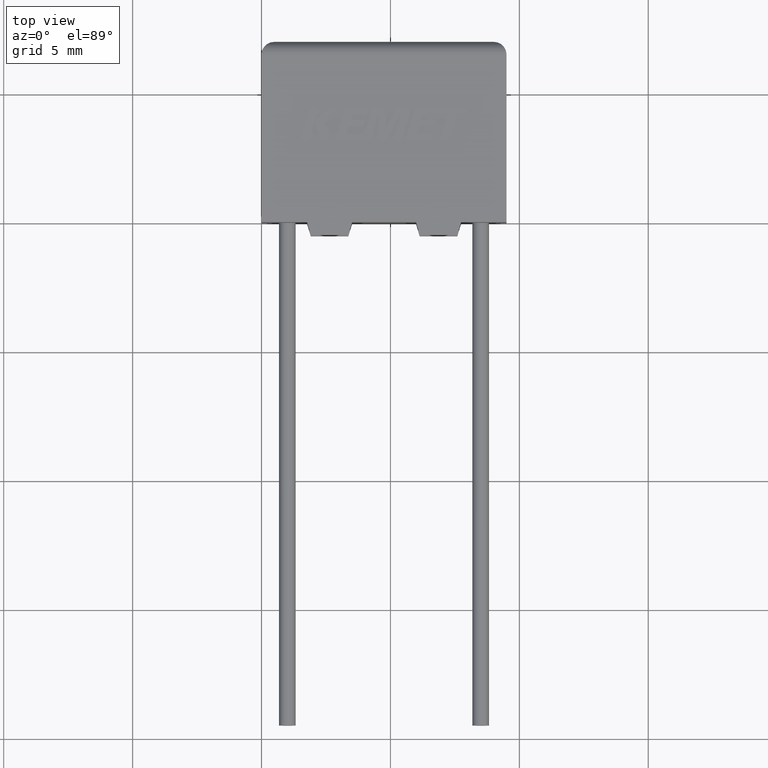
[diagram: clean part render]
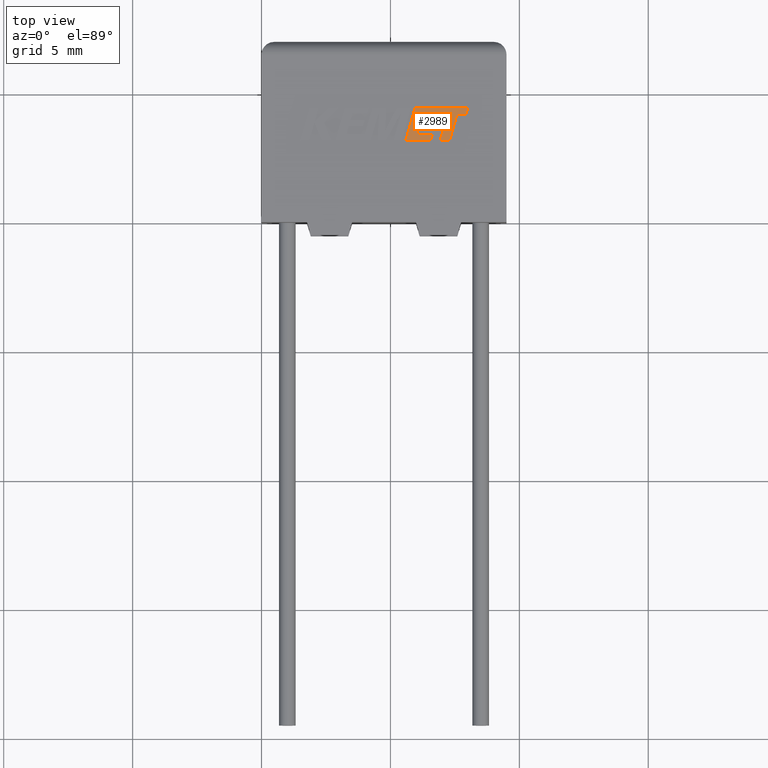
[diagram: same view with one face highlighted and labeled with its STEP entity id]
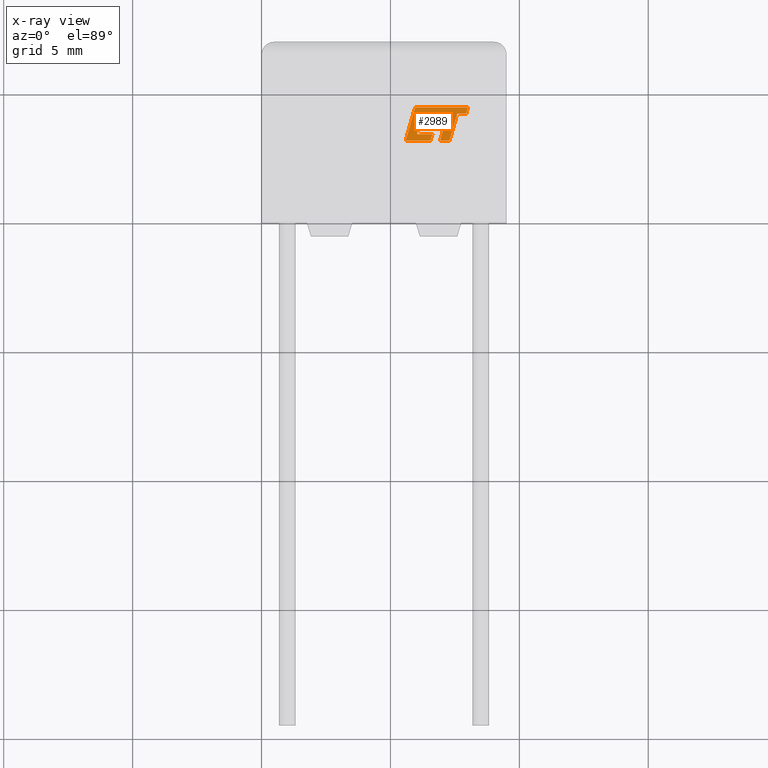
[diagram: x-ray of the same camera — body ghosted, the highlighted face saturated]
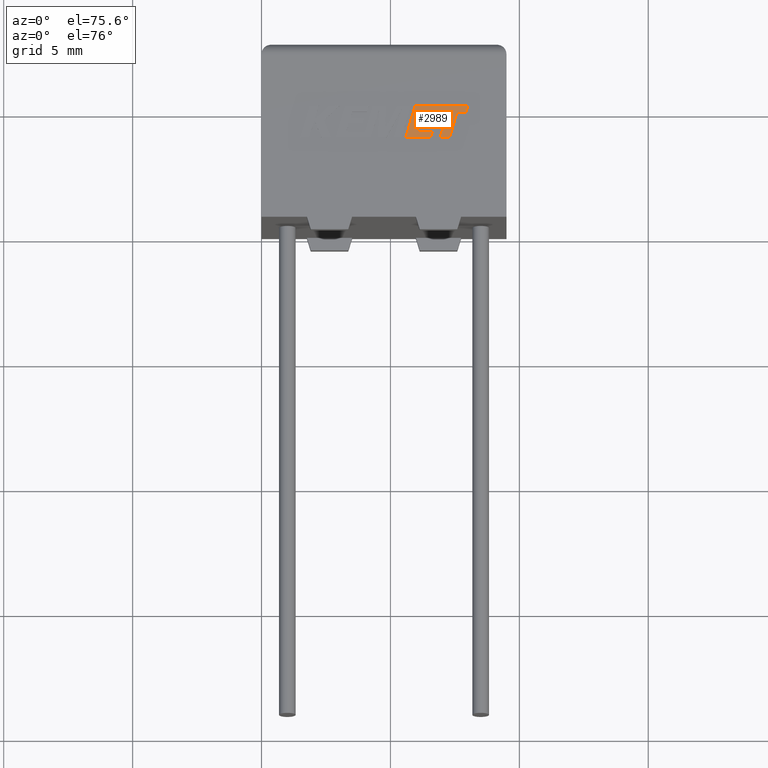
[diagram: same view with one face highlighted and labeled with its STEP entity id]
A machine part, top view. The second image highlights one B-rep face of the part: STEP entity #2989.
The next image is the same camera in x-ray: the body ghosted, the highlighted face saturated — about 0% of this face is hidden behind the body in this view.
A second angle (auxiliary view) of the same face is appended — the face is thin or edge-on in the first view.
In plain terms, the highlighted planar face has unit normal (0, 0, 1).
Its self-contained STEP definition (entity closure, byte-faithful):
#50 = LINE ( 'NONE', #1029, #3179 ) ;
#56 = CARTESIAN_POINT ( 'NONE',  ( 6.023863378549097400, 3.409076849371651500, 3.504999999999999900 ) ) ;
#64 = CARTESIAN_POINT ( 'NONE',  ( 5.591255720364100200, 3.166099999999960200, 3.504999999999999900 ) ) ;
#92 = VERTEX_POINT ( 'NONE', #2502 ) ;
#124 = CARTESIAN_POINT ( 'NONE',  ( 5.958535833833648700, 4.442996107114993300, 3.504999999999999900 ) ) ;
#129 = EDGE_CURVE ( 'NONE', #672, #1308, #50, .T. ) ;
#174 = LINE ( 'NONE', #1028, #2253 ) ;
#194 = LINE ( 'NONE', #2628, #2767 ) ;
#225 = EDGE_CURVE ( 'NONE', #1308, #1525, #2175, .T. ) ;
#230 = VECTOR ( 'NONE', #2224, 1000.000000000000000 ) ;
#249 = CARTESIAN_POINT ( 'NONE',  ( 6.836051022286294000, 4.198256586531230500, 3.504999999999999900 ) ) ;
#339 = VECTOR ( 'NONE', #3167, 1000.000000000000000 ) ;
#348 = CARTESIAN_POINT ( 'NONE',  ( 6.250906301396633500, 4.199902781669781100, 3.504999999999999900 ) ) ;
#394 = VERTEX_POINT ( 'NONE', #3118 ) ;
#404 = EDGE_LOOP ( 'NONE', ( #1513, #2937, #669, #1415, #2380, #2860, #2192, #2743, #2821, #1176, #2911, #2789, #2711, #2631, #3005, #1655, #1047 ) ) ;
#427 = EDGE_CURVE ( 'NONE', #1050, #1061, #2006, .T. ) ;
#442 = CARTESIAN_POINT ( 'NONE',  ( 6.624934260892433500, 3.409076849371651500, 3.504999999999999900 ) ) ;
#454 = EDGE_CURVE ( 'NONE', #1502, #1313, #2601, .T. ) ;
#602 = CARTESIAN_POINT ( 'NONE',  ( 6.023863378549097400, 3.409076849371651500, 3.504999999999999900 ) ) ;
#603 = DIRECTION ( 'NONE',  ( -0.2763173343569912400, -0.9610664548998924000, 0.0000000000000000000 ) ) ;
#659 = CARTESIAN_POINT ( 'NONE',  ( 6.114450701574497800, 3.726388727316728200, 3.504999999999999900 ) ) ;
#669 = ORIENTED_EDGE ( 'NONE', *, *, #1836, .T. ) ;
#670 = LINE ( 'NONE', #659, #3248 ) ;
#672 = VERTEX_POINT ( 'NONE', #124 ) ;
#673 = CARTESIAN_POINT ( 'NONE',  ( 6.181797165880968100, 3.962400307638313600, 3.504999999999999900 ) ) ;
#680 = LINE ( 'NONE', #1084, #1670 ) ;
#688 = CARTESIAN_POINT ( 'NONE',  ( 6.662346374928051600, 3.726388727316728200, 3.504999999999999900 ) ) ;
#731 = FACE_OUTER_BOUND ( 'NONE', #404, .T. ) ;
#742 = CARTESIAN_POINT ( 'NONE',  ( 7.937498666433691100, 4.196423453028154800, 3.504999999999999900 ) ) ;
#780 = EDGE_CURVE ( 'NONE', #1061, #1502, #670, .T. ) ;
#810 = EDGE_CURVE ( 'NONE', #394, #92, #1733, .T. ) ;
#836 = DIRECTION ( 'NONE',  ( 1.000000000000000000, 0.0000000000000000000, 0.0000000000000000000 ) ) ;
#847 = CARTESIAN_POINT ( 'NONE',  ( 6.624934260892433500, 3.409076849371651500, 3.504999999999999900 ) ) ;
#887 = DIRECTION ( 'NONE',  ( 1.000000000000000000, 0.0000000000000000000, 0.0000000000000000000 ) ) ;
#912 = CARTESIAN_POINT ( 'NONE',  ( 6.555988191876494400, 3.166099999999960200, 3.504999999999999900 ) ) ;
#928 = LINE ( 'NONE', #442, #230 ) ;
#934 = EDGE_CURVE ( 'NONE', #3102, #3019, #2710, .T. ) ;
#947 = VECTOR ( 'NONE', #2516, 1000.000000000000000 ) ;
#959 = CARTESIAN_POINT ( 'NONE',  ( 8.008359383655495400, 4.442996107114993300, 3.504999999999999900 ) ) ;
#996 = CARTESIAN_POINT ( 'NONE',  ( 6.114450701574497800, 3.726388727316728200, 3.504999999999999900 ) ) ;
#1007 = VERTEX_POINT ( 'NONE', #742 ) ;
#1028 = CARTESIAN_POINT ( 'NONE',  ( 6.729770489948595700, 3.962400307638313600, 3.504999999999999900 ) ) ;
#1029 = CARTESIAN_POINT ( 'NONE',  ( 5.958535833833648700, 4.442996107114993300, 3.504999999999999900 ) ) ;
#1047 = ORIENTED_EDGE ( 'NONE', *, *, #810, .T. ) ;
#1050 = VERTEX_POINT ( 'NONE', #56 ) ;
#1054 = CARTESIAN_POINT ( 'NONE',  ( 7.291744237761432300, 3.166099999999960200, 3.504999999999999900 ) ) ;
#1061 = VERTEX_POINT ( 'NONE', #996 ) ;
#1084 = CARTESIAN_POINT ( 'NONE',  ( 7.224242472026946700, 4.196451207429181100, 3.504999999999999900 ) ) ;
#1176 = ORIENTED_EDGE ( 'NONE', *, *, #225, .T. ) ;
#1202 = DIRECTION ( 'NONE',  ( 0.2729786930695575800, 0.9620200793798622300, 0.0000000000000000000 ) ) ;
#1296 = EDGE_CURVE ( 'NONE', #1313, #394, #174, .T. ) ;
#1308 = VERTEX_POINT ( 'NONE', #3243 ) ;
#1313 = VERTEX_POINT ( 'NONE', #2014 ) ;
#1337 = CARTESIAN_POINT ( 'NONE',  ( 0.04312138960717629800, -3.919304190165553400, 3.504999999999999900 ) ) ;
#1342 = EDGE_CURVE ( 'NONE', #2517, #3224, #1426, .T. ) ;
#1351 = VECTOR ( 'NONE', #2583, 1000.000000000000100 ) ;
#1415 = ORIENTED_EDGE ( 'NONE', *, *, #2807, .T. ) ;
#1421 = DIRECTION ( 'NONE',  ( 0.9999999968487352000, -7.938847109813094300E-005, 0.0000000000000000000 ) ) ;
#1426 = LINE ( 'NONE', #249, #1671 ) ;
#1460 = VERTEX_POINT ( 'NONE', #2666 ) ;
#1475 = DIRECTION ( 'NONE',  ( 0.2762437428917420800, 0.9610876102172794000, 0.0000000000000000000 ) ) ;
#1485 = LINE ( 'NONE', #2195, #1686 ) ;
#1488 = CARTESIAN_POINT ( 'NONE',  ( 6.662346374928051600, 3.726388727316728200, 3.504999999999999900 ) ) ;
#1502 = VERTEX_POINT ( 'NONE', #688 ) ;
#1513 = ORIENTED_EDGE ( 'NONE', *, *, #1693, .T. ) ;
#1525 = VERTEX_POINT ( 'NONE', #1675 ) ;
#1605 = LINE ( 'NONE', #2206, #2958 ) ;
#1655 = ORIENTED_EDGE ( 'NONE', *, *, #1296, .T. ) ;
#1670 = VECTOR ( 'NONE', #603, 999.9999999999998900 ) ;
#1671 = VECTOR ( 'NONE', #2994, 1000.000000000000100 ) ;
#1675 = CARTESIAN_POINT ( 'NONE',  ( 6.555988191876494400, 3.166099999999960200, 3.504999999999999900 ) ) ;
#1686 = VECTOR ( 'NONE', #3156, 1000.000000000000000 ) ;
#1693 = EDGE_CURVE ( 'NONE', #92, #2517, #1931, .T. ) ;
#1728 = CARTESIAN_POINT ( 'NONE',  ( 7.291744237761432300, 3.166099999999960200, 3.504999999999999900 ) ) ;
#1733 = LINE ( 'NONE', #673, #1766 ) ;
#1766 = VECTOR ( 'NONE', #2689, 1000.000000000000200 ) ;
#1807 = DIRECTION ( 'NONE',  ( 1.000000000000000000, 0.0000000000000000000, 0.0000000000000000000 ) ) ;
#1836 = EDGE_CURVE ( 'NONE', #3224, #1460, #680, .T. ) ;
#1844 = VERTEX_POINT ( 'NONE', #847 ) ;
#1892 = PLANE ( 'NONE',  #2263 ) ;
#1931 = LINE ( 'NONE', #348, #2454 ) ;
#2006 = LINE ( 'NONE', #602, #1351 ) ;
#2014 = CARTESIAN_POINT ( 'NONE',  ( 6.729770489948595700, 3.962400307638313600, 3.504999999999999900 ) ) ;
#2158 = VECTOR ( 'NONE', #1202, 1000.000000000000100 ) ;
#2175 = LINE ( 'NONE', #64, #2563 ) ;
#2192 = ORIENTED_EDGE ( 'NONE', *, *, #2535, .T. ) ;
#2195 = CARTESIAN_POINT ( 'NONE',  ( 7.937498666433691100, 4.196423453028154800, 3.504999999999999900 ) ) ;
#2205 = CARTESIAN_POINT ( 'NONE',  ( 8.008359383655495400, 4.442996107114993300, 3.504999999999999900 ) ) ;
#2206 = CARTESIAN_POINT ( 'NONE',  ( 7.587896296123752800, 4.196451207425912600, 3.504999999999999900 ) ) ;
#2224 = DIRECTION ( 'NONE',  ( -1.000000000000000000, 0.0000000000000000000, 0.0000000000000000000 ) ) ;
#2242 = VECTOR ( 'NONE', #1475, 1000.000000000000100 ) ;
#2253 = VECTOR ( 'NONE', #2501, 1000.000000000000000 ) ;
#2263 = AXIS2_PLACEMENT_3D ( 'NONE', #1337, #3065, #1807 ) ;
#2266 = CARTESIAN_POINT ( 'NONE',  ( 7.224242472026946700, 4.196451207429181100, 3.504999999999999900 ) ) ;
#2305 = LINE ( 'NONE', #912, #2158 ) ;
#2380 = ORIENTED_EDGE ( 'NONE', *, *, #934, .T. ) ;
#2454 = VECTOR ( 'NONE', #2856, 999.9999999999998900 ) ;
#2501 = DIRECTION ( 'NONE',  ( -1.000000000000000000, 0.0000000000000000000, 0.0000000000000000000 ) ) ;
#2502 = CARTESIAN_POINT ( 'NONE',  ( 6.250906301396633500, 4.199902781669781100, 3.504999999999999900 ) ) ;
#2506 = EDGE_CURVE ( 'NONE', #3019, #1007, #1605, .T. ) ;
#2516 = DIRECTION ( 'NONE',  ( 0.2746918797667246600, 0.9615323037684294600, 0.0000000000000000000 ) ) ;
#2517 = VERTEX_POINT ( 'NONE', #3191 ) ;
#2531 = EDGE_CURVE ( 'NONE', #1525, #1844, #2305, .T. ) ;
#2535 = EDGE_CURVE ( 'NONE', #1007, #2898, #1485, .T. ) ;
#2563 = VECTOR ( 'NONE', #836, 1000.000000000000000 ) ;
#2583 = DIRECTION ( 'NONE',  ( 0.2745159998572696500, 0.9615825319869135700, 0.0000000000000000000 ) ) ;
#2601 = LINE ( 'NONE', #1488, #947 ) ;
#2628 = CARTESIAN_POINT ( 'NONE',  ( 6.928004997878496800, 3.166099999999960200, 3.504999999999999900 ) ) ;
#2631 = ORIENTED_EDGE ( 'NONE', *, *, #780, .T. ) ;
#2666 = CARTESIAN_POINT ( 'NONE',  ( 6.928004997878496800, 3.166099999999960200, 3.504999999999999900 ) ) ;
#2689 = DIRECTION ( 'NONE',  ( 0.2793947940814911500, 0.9601763114346036900, 0.0000000000000000000 ) ) ;
#2702 = EDGE_CURVE ( 'NONE', #2898, #672, #3154, .T. ) ;
#2710 = LINE ( 'NONE', #1728, #2242 ) ;
#2711 = ORIENTED_EDGE ( 'NONE', *, *, #427, .T. ) ;
#2743 = ORIENTED_EDGE ( 'NONE', *, *, #2702, .T. ) ;
#2767 = VECTOR ( 'NONE', #887, 1000.000000000000000 ) ;
#2789 = ORIENTED_EDGE ( 'NONE', *, *, #2943, .T. ) ;
#2807 = EDGE_CURVE ( 'NONE', #1460, #3102, #194, .T. ) ;
#2821 = ORIENTED_EDGE ( 'NONE', *, *, #129, .T. ) ;
#2846 = CARTESIAN_POINT ( 'NONE',  ( 7.587896296123752800, 4.196451207425912600, 3.504999999999999900 ) ) ;
#2856 = DIRECTION ( 'NONE',  ( 0.9999960426590096500, -0.002813301676023192500, 0.0000000000000000000 ) ) ;
#2860 = ORIENTED_EDGE ( 'NONE', *, *, #2506, .T. ) ;
#2898 = VERTEX_POINT ( 'NONE', #959 ) ;
#2911 = ORIENTED_EDGE ( 'NONE', *, *, #2531, .T. ) ;
#2919 = DIRECTION ( 'NONE',  ( 1.000000000000000000, 0.0000000000000000000, 0.0000000000000000000 ) ) ;
#2937 = ORIENTED_EDGE ( 'NONE', *, *, #1342, .T. ) ;
#2943 = EDGE_CURVE ( 'NONE', #1844, #1050, #928, .T. ) ;
#2958 = VECTOR ( 'NONE', #1421, 1000.000000000000200 ) ;
#2989 = ADVANCED_FACE ( 'NONE', ( #731 ), #1892, .T. ) ;
#2994 = DIRECTION ( 'NONE',  ( 0.9999891854650020400, -0.004650693823678666100, 0.0000000000000000000 ) ) ;
#3005 = ORIENTED_EDGE ( 'NONE', *, *, #454, .T. ) ;
#3019 = VERTEX_POINT ( 'NONE', #2846 ) ;
#3020 = DIRECTION ( 'NONE',  ( -0.2764273280489771800, -0.9610348236706634000, 0.0000000000000000000 ) ) ;
#3065 = DIRECTION ( 'NONE',  ( 0.0000000000000000000, 0.0000000000000000000, 1.000000000000000000 ) ) ;
#3102 = VERTEX_POINT ( 'NONE', #1054 ) ;
#3118 = CARTESIAN_POINT ( 'NONE',  ( 6.181797165880968100, 3.962400307638313600, 3.504999999999999900 ) ) ;
#3154 = LINE ( 'NONE', #2205, #339 ) ;
#3156 = DIRECTION ( 'NONE',  ( 0.2762033010287925900, 0.9610992334305538100, 0.0000000000000000000 ) ) ;
#3167 = DIRECTION ( 'NONE',  ( -1.000000000000000000, 0.0000000000000000000, 0.0000000000000000000 ) ) ;
#3179 = VECTOR ( 'NONE', #3020, 1000.000000000000200 ) ;
#3191 = CARTESIAN_POINT ( 'NONE',  ( 6.836051022286294000, 4.198256586531230500, 3.504999999999999900 ) ) ;
#3224 = VERTEX_POINT ( 'NONE', #2266 ) ;
#3243 = CARTESIAN_POINT ( 'NONE',  ( 5.591255720364100200, 3.166099999999960200, 3.504999999999999900 ) ) ;
#3248 = VECTOR ( 'NONE', #2919, 1000.000000000000000 ) ;